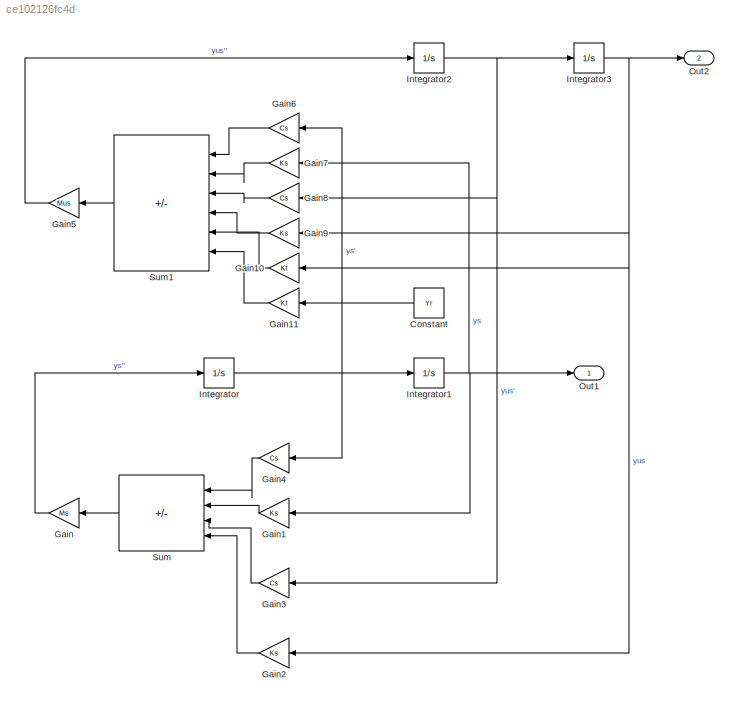
MODEL slx_ce102126fc4d
KIND model
CONFIG AbsTol = auto
CONFIG EnableMultiTasking = off
CONFIG FixedStep = auto
CONFIG MaxStep = auto
CONFIG MinStep = auto
CONFIG PreLoadFcn = load('variables');\n\nYr=1;
CONFIG RelTol = 1e-3
CONFIG SampleTimeConstraint = Unconstrained
CONFIG SolverName = VariableStepAuto
CONFIG StartTime = 0.0
CONFIG StopTime = 10.0
BLOCK [Constant] Constant
  NameLocation = top
  Value = Yr
BLOCK [Gain] Gain
  Gain = Ms
  NameLocation = top
BLOCK [Gain] Gain1
  Gain = Ks
  NameLocation = top
BLOCK [Gain] Gain10
  Gain = Kt
  NameLocation = top
BLOCK [Gain] Gain11
  Gain = Kt
  NameLocation = top
BLOCK [Gain] Gain2
  Gain = Ks
  NameLocation = top
BLOCK [Gain] Gain3
  Gain = Cs
  NameLocation = top
BLOCK [Gain] Gain4
  Gain = Cs
  NameLocation = top
BLOCK [Gain] Gain5
  Gain = Mus
  NameLocation = top
BLOCK [Gain] Gain6
  Gain = Cs
  NameLocation = top
BLOCK [Gain] Gain7
  Gain = Ks
  NameLocation = top
BLOCK [Gain] Gain8
  Gain = Cs
  NameLocation = top
BLOCK [Gain] Gain9
  Gain = Ks
  NameLocation = top
BLOCK [Integrator] Integrator
  Ports = [1, 1]
BLOCK [Integrator] Integrator1
  Ports = [1, 1]
BLOCK [Integrator] Integrator2
  Ports = [1, 1]
BLOCK [Integrator] Integrator3
  Ports = [1, 1]
BLOCK [Outport] Out1
BLOCK [Outport] Out2
  Port = 2
BLOCK [Sum] Sum
  IconShape = rectangular
  Inputs = |--++
  NameLocation = top
  Ports = [4, 1]
BLOCK [Sum] Sum1
  IconShape = rectangular
  Inputs = |++---+
  NameLocation = top
  Ports = [6, 1]
LINE Constant:1 -> Gain11:1
LINE Gain10:1 -> Sum1:5
LINE Gain11:1 -> Sum1:6
LINE Gain1:1 -> Sum:2
LINE Gain2:1 -> Sum:4
LINE Gain3:1 -> Sum:3
LINE Gain4:1 -> Sum:1
LINE Gain5:1 -> Integrator2:1
LINE Gain6:1 -> Sum1:1
LINE Gain7:1 -> Sum1:2
LINE Gain8:1 -> Sum1:3
LINE Gain9:1 -> Sum1:4
LINE Gain:1 -> Integrator:1
NET Integrator1:1 -> Gain1:1, Gain7:1, Out1:1
NET Integrator2:1 -> Gain3:1, Gain8:1, Integrator3:1
NET Integrator3:1 -> Gain10:1, Gain2:1, Gain9:1, Out2:1
NET Integrator:1 -> Gain4:1, Gain6:1, Integrator1:1
LINE Sum1:1 -> Gain5:1
LINE Sum:1 -> Gain:1
note: NET lines group one-source signal fan-out (src -> all destinations, sorted); 1:1 wires keep LINE
